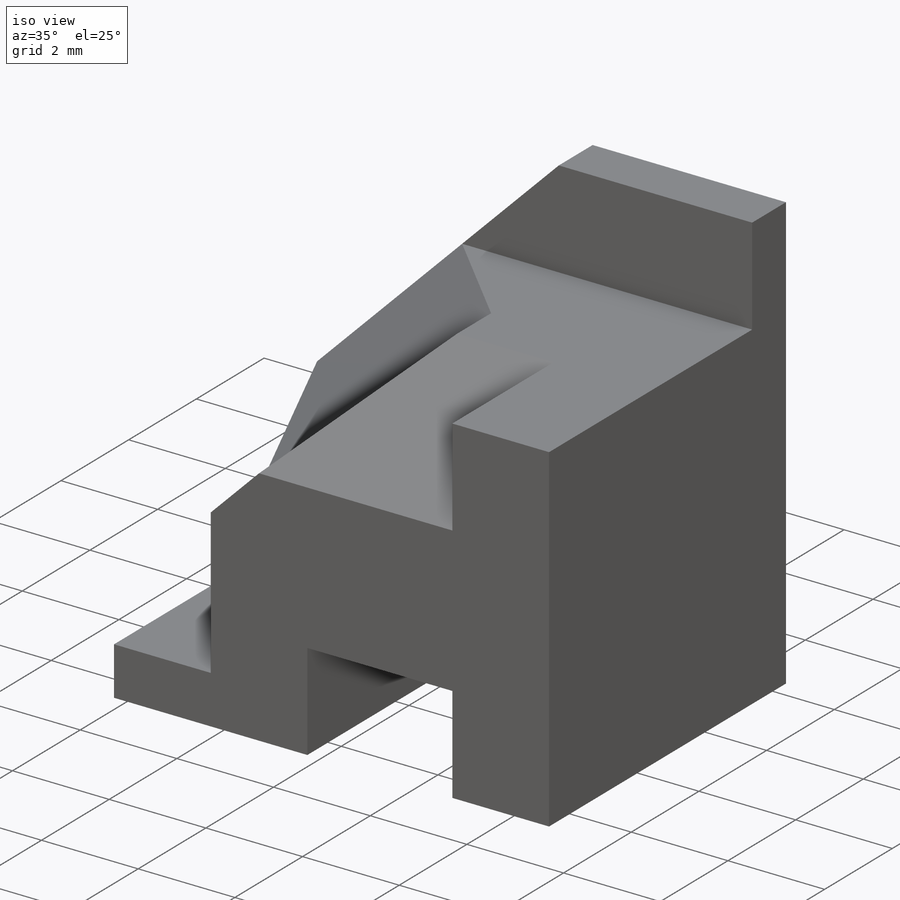
[diagram: iso view]
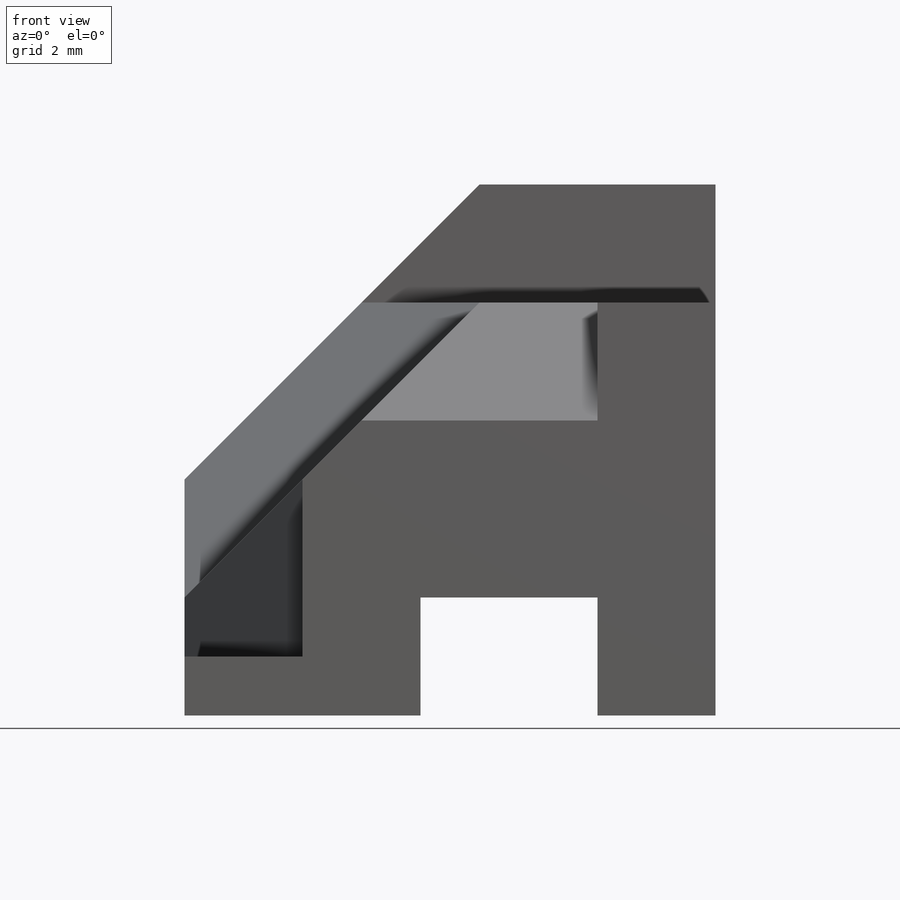
[diagram: front view]
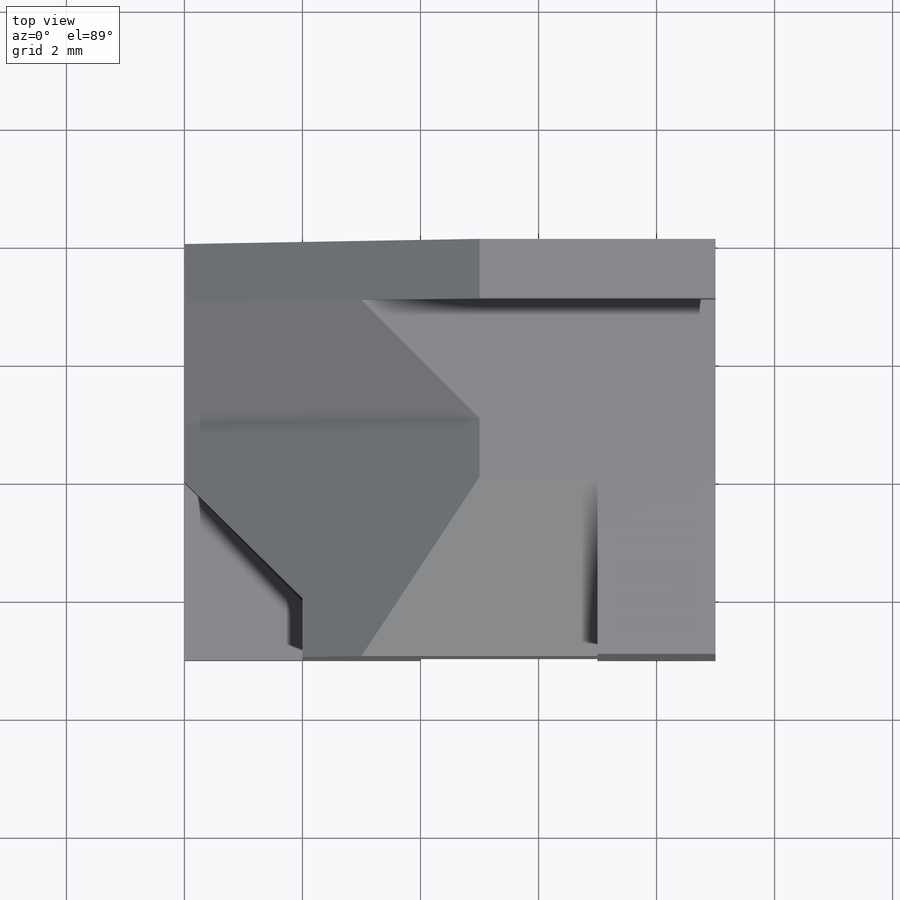
[diagram: top view]
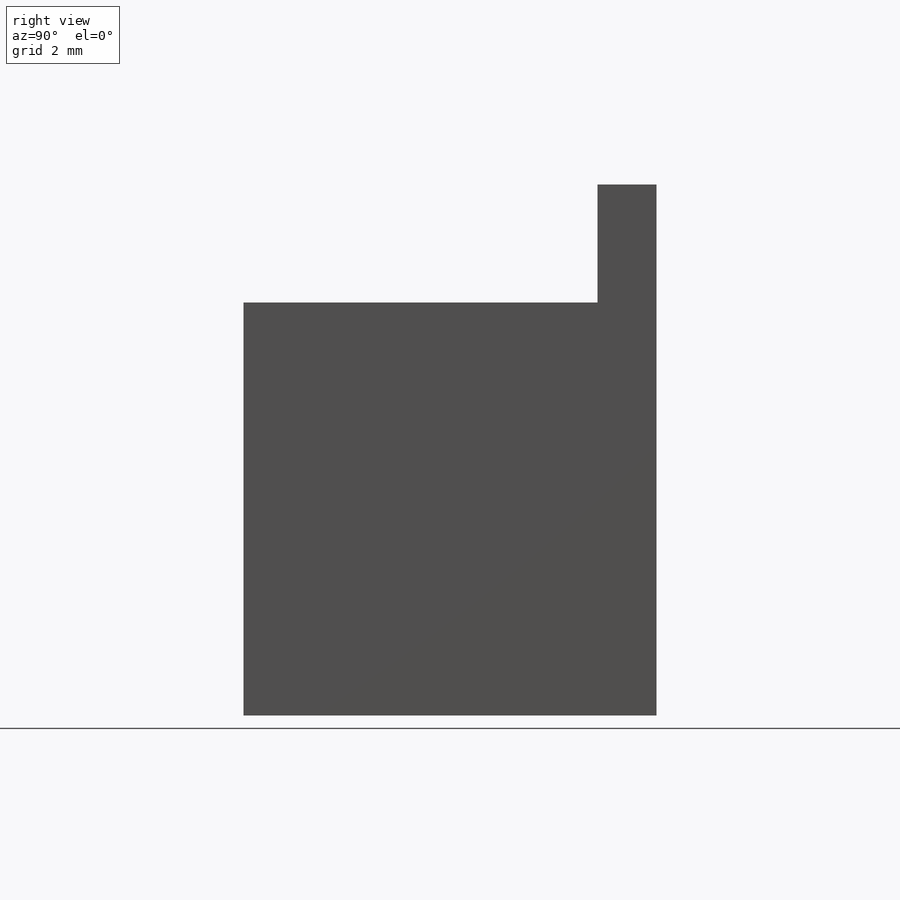
[diagram: right view]
SOLIDWORKS PART (.sldprt)
format: sldprt  version: not decoded by parser v0  size: 259,584 bytes
history: native  units: mm
features: sketch x7, cut_extrude x5, extrude x2, material x1 (+13 scaffold rows collapsed)
feature tree (28):
  scaffold x13  (default folders/planes/origin — collapsed)
  material  "Material <not specified>"
  sketch  "Sketch1"  dims[D1=9.0mm D2=9.0mm D3=5.0mm D4=5.0mm]
  extrude  "Boss-Extrude1"  Depth=1mm
  sketch  "Sketch2"  dims[D1=2.0mm]
  extrude  "Boss-Extrude2"  Depth=6mm
  sketch  "3DSketch1"  dims[D1=2.0mm D2=3.0mm D3=2.0mm D4=3.0mm D5=2.0mm D6=4.0mm D7=2.0mm D8=2.0mm D9=3.0mm]
  cut_extrude  "Cut-Extrude1"  Depth=6mm
  sketch  "Sketch4"  dims[D1=2.0mm D2=3.0mm D3=2.0mm]
  cut_extrude  "Cut-Extrude3"  Depth=7mm
  sketch  "Sketch5"  dims[D1=1.0mm D2=2.0mm D3=3.0mm]
  cut_extrude  "Cut-Extrude5"  Depth=6mm
  sketch  "3DSketch4"  dims[c1.D1=1.0mm c1.D2=2.0mm c1.D3=2.0mm c1.D4=3.0mm c1.D5=3.0mm c1.D6=1.0mm c1.D7=~2.488801mm c1.D8=~2.488801mm c2.D7=4.0mm c2.D8=2.0mm c2.D9=4.0mm]
  cut_extrude  "Cut-Extrude6"  Depth=6mm
  sketch  "3DSketch5"
  cut_extrude  "Cut-Extrude7"  Depth=6mm
decode coverage: 13 of 14 modeling features carry decoded parameters
note: ~ marks probable driven/reference dimensions
note: suppression state not decoded; provenance and decode notes live in map.json
